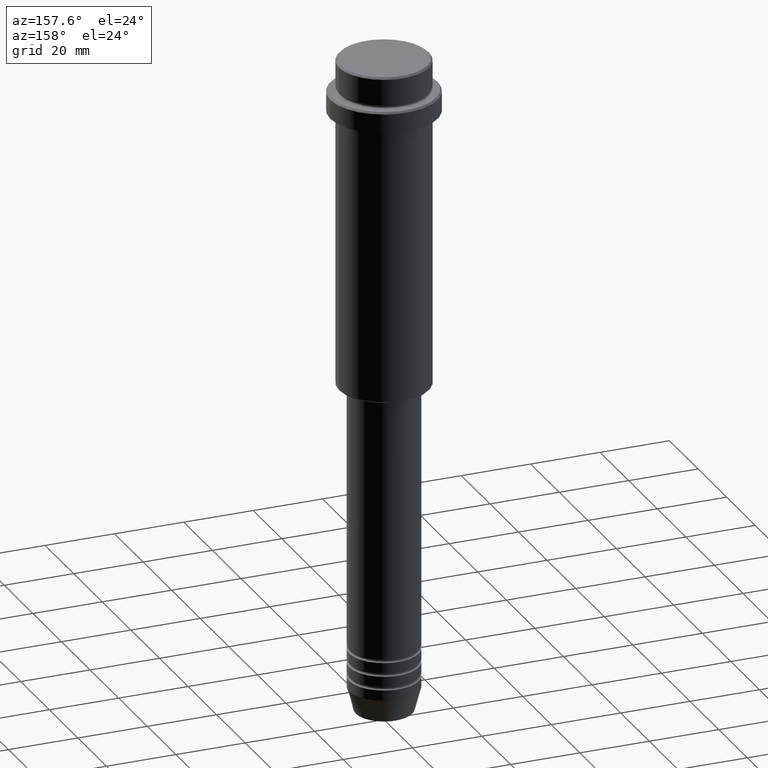
[diagram: clean part render]
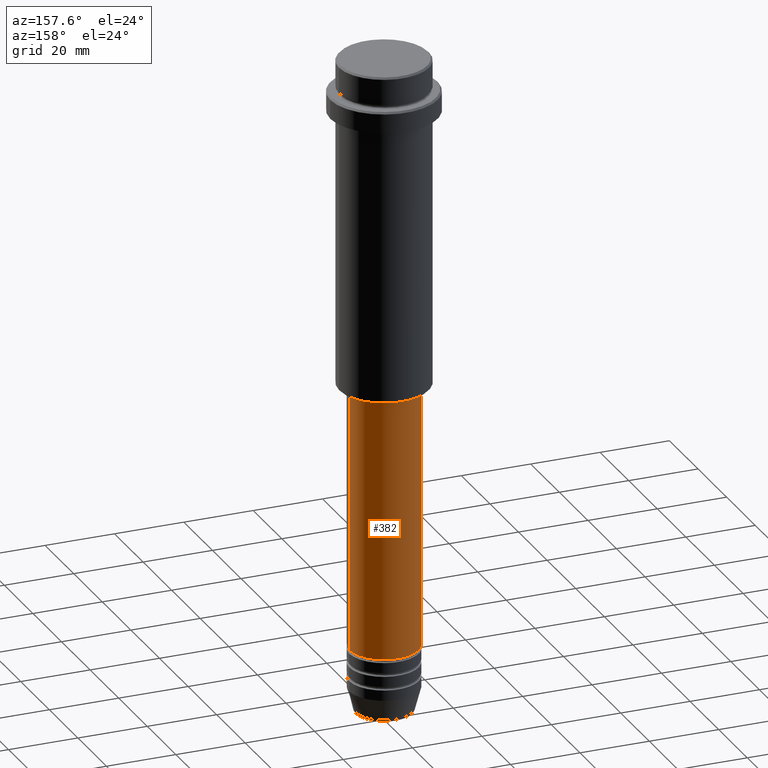
[diagram: same view with one face highlighted and labeled with its STEP entity id]
A machine part, auxiliary view. The second image highlights one B-rep face of the part: STEP entity #382.
In plain terms, the highlighted cylindrical surface (partial cylindrical patch) has radius 10 mm, axis along (-0, -0, 1).
Its self-contained STEP definition (entity closure, byte-faithful):
#170 = CIRCLE ( 'NONE', #1108, 10.00000000000000178 ) ;
#186 = LINE ( 'NONE', #926, #1207 ) ;
#233 = ORIENTED_EDGE ( 'NONE', *, *, #800, .T. ) ;
#279 = ORIENTED_EDGE ( 'NONE', *, *, #1060, .F. ) ;
#292 = CARTESIAN_POINT ( 'NONE',  ( 10.00000000000000178, 0.000000000000000000, 0.000000000000000000 ) ) ;
#381 = EDGE_LOOP ( 'NONE', ( #1393, #233, #279, #817 ) ) ;
#382 = ADVANCED_FACE ( 'NONE', ( #422 ), #410, .T. ) ;
#388 = DIRECTION ( 'NONE',  ( 1.000000000000000000, 0.000000000000000000, 0.000000000000000000 ) ) ;
#394 = CIRCLE ( 'NONE', #436, 10.00000000000000000 ) ;
#410 = CYLINDRICAL_SURFACE ( 'NONE', #450, 10.00000000000000178 ) ;
#418 = DIRECTION ( 'NONE',  ( -0.000000000000000000, -0.000000000000000000, 1.000000000000000000 ) ) ;
#422 = FACE_OUTER_BOUND ( 'NONE', #381, .T. ) ;
#429 = EDGE_CURVE ( 'NONE', #1121, #1195, #1073, .T. ) ;
#436 = AXIS2_PLACEMENT_3D ( 'NONE', #832, #621, #388 ) ;
#450 = AXIS2_PLACEMENT_3D ( 'NONE', #1386, #529, #815 ) ;
#464 = CARTESIAN_POINT ( 'NONE',  ( 10.00000000000000000, 0.000000000000000000, -170.9999999999998863 ) ) ;
#498 = DIRECTION ( 'NONE',  ( -0.000000000000000000, -0.000000000000000000, 1.000000000000000000 ) ) ;
#502 = VERTEX_POINT ( 'NONE', #1196 ) ;
#529 = DIRECTION ( 'NONE',  ( -0.000000000000000000, -0.000000000000000000, 1.000000000000000000 ) ) ;
#621 = DIRECTION ( 'NONE',  ( -0.000000000000000000, -0.000000000000000000, 1.000000000000000000 ) ) ;
#780 = CARTESIAN_POINT ( 'NONE',  ( 10.00000000000000178, 0.000000000000000000, -96.00000000000000000 ) ) ;
#800 = EDGE_CURVE ( 'NONE', #1044, #502, #186, .T. ) ;
#803 = VECTOR ( 'NONE', #418, 1000.000000000000000 ) ;
#815 = DIRECTION ( 'NONE',  ( 1.000000000000000000, 0.000000000000000000, 0.000000000000000000 ) ) ;
#817 = ORIENTED_EDGE ( 'NONE', *, *, #429, .F. ) ;
#832 = CARTESIAN_POINT ( 'NONE',  ( 0.000000000000000000, 0.000000000000000000, -170.9999999999998863 ) ) ;
#926 = CARTESIAN_POINT ( 'NONE',  ( -10.00000000000000178, 1.224646799147353454E-15, 0.000000000000000000 ) ) ;
#995 = DIRECTION ( 'NONE',  ( 1.000000000000000000, 0.000000000000000000, 0.000000000000000000 ) ) ;
#1044 = VERTEX_POINT ( 'NONE', #1218 ) ;
#1060 = EDGE_CURVE ( 'NONE', #1195, #502, #170, .T. ) ;
#1073 = LINE ( 'NONE', #292, #803 ) ;
#1108 = AXIS2_PLACEMENT_3D ( 'NONE', #1256, #498, #995 ) ;
#1121 = VERTEX_POINT ( 'NONE', #464 ) ;
#1195 = VERTEX_POINT ( 'NONE', #780 ) ;
#1196 = CARTESIAN_POINT ( 'NONE',  ( -10.00000000000000178, 1.224646799147353454E-15, -96.00000000000000000 ) ) ;
#1207 = VECTOR ( 'NONE', #1276, 1000.000000000000000 ) ;
#1218 = CARTESIAN_POINT ( 'NONE',  ( -10.00000000000000000, 1.224646799147353256E-15, -170.9999999999998863 ) ) ;
#1240 = EDGE_CURVE ( 'NONE', #1121, #1044, #394, .T. ) ;
#1256 = CARTESIAN_POINT ( 'NONE',  ( 0.000000000000000000, 0.000000000000000000, -96.00000000000000000 ) ) ;
#1276 = DIRECTION ( 'NONE',  ( -0.000000000000000000, -0.000000000000000000, 1.000000000000000000 ) ) ;
#1386 = CARTESIAN_POINT ( 'NONE',  ( 0.000000000000000000, 0.000000000000000000, 0.000000000000000000 ) ) ;
#1393 = ORIENTED_EDGE ( 'NONE', *, *, #1240, .T. ) ;